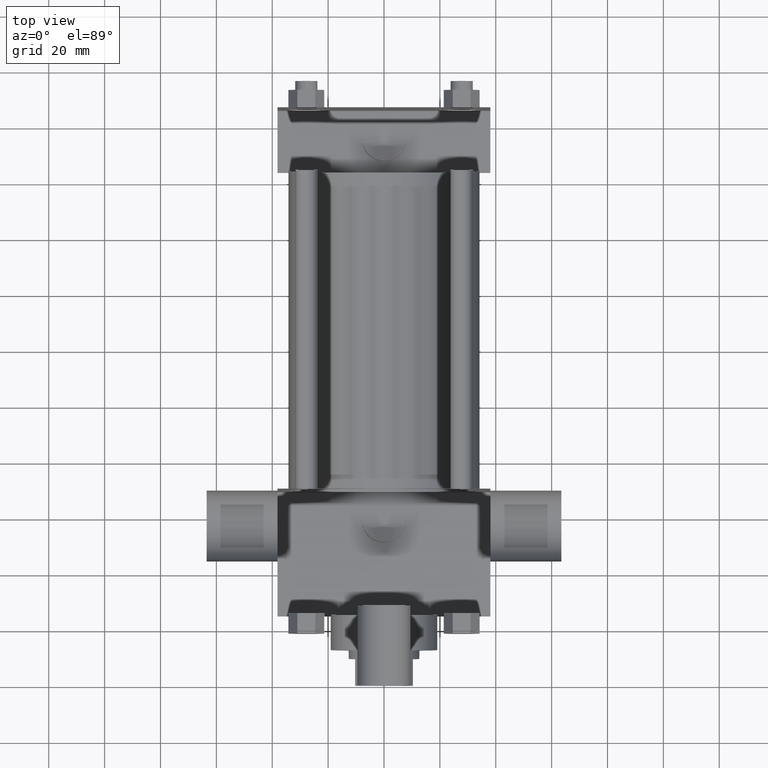
[diagram: clean part render]
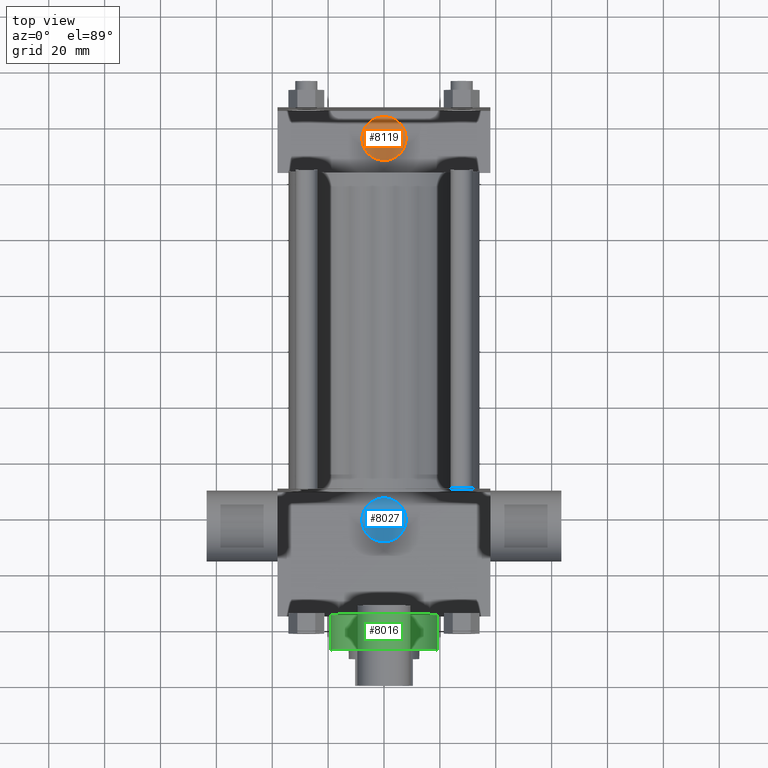
[diagram: same view with three faces highlighted in distinct colors, each labeled with its STEP entity id]
A machine part, top view with three faces highlighted in distinct colors.
Their STEP definitions:

[orange] entity #8119 — the highlighted planar face has unit normal (0, 0, -1).
#4816=EDGE_CURVE('',#4822,#4822,#4817,.T.);
#4817=CIRCLE('',#4818,7.963027000E+000);
#4818=AXIS2_PLACEMENT_3D('',#4819,#4820,#4821);
#4819=CARTESIAN_POINT('',(0.000000000E+000,1.952625000E+002,2.628900000E+001));
#4820=DIRECTION('',(0.0E+000,0.0E+000,-1.0E+000));
#4821=DIRECTION('',(1.0E+000,0.0E+000,0.0E+000));
#4822=VERTEX_POINT('',#4823);
#4823=CARTESIAN_POINT('',(7.963027000E+000,1.952625000E+002,2.628900000E+001));
#4830=FACE_OUTER_BOUND('',#4831,.T.);
#4831=EDGE_LOOP('',(#4832));
#4832=ORIENTED_EDGE('',*,*,#4816,.F.);
#4833=PLANE('',#4834);
#4834=AXIS2_PLACEMENT_3D('',#4835,#4836,#4837);
#4835=CARTESIAN_POINT('',(0.000000000E+000,1.952625000E+002,2.628900000E+001));
#4836=DIRECTION('',(0.0E+000,0.0E+000,-1.0E+000));
#4837=DIRECTION('',(-1.0E+000,0.0E+000,0.0E+000));
#8119=ADVANCED_FACE('',(#4830),#4833,.F.);

[blue] entity #8027 — the highlighted planar face has unit normal (0, 0, -1).
#744=EDGE_CURVE('',#750,#750,#745,.T.);
#745=CIRCLE('',#746,7.963027000E+000);
#746=AXIS2_PLACEMENT_3D('',#747,#748,#749);
#747=CARTESIAN_POINT('',(0.000000000E+000,5.873750000E+001,2.628900000E+001));
#748=DIRECTION('',(0.0E+000,0.0E+000,-1.0E+000));
#749=DIRECTION('',(1.0E+000,0.0E+000,0.0E+000));
#750=VERTEX_POINT('',#751);
#751=CARTESIAN_POINT('',(7.963027000E+000,5.873750000E+001,2.628900000E+001));
#758=FACE_OUTER_BOUND('',#759,.T.);
#759=EDGE_LOOP('',(#760));
#760=ORIENTED_EDGE('',*,*,#744,.F.);
#761=PLANE('',#762);
#762=AXIS2_PLACEMENT_3D('',#763,#764,#765);
#763=CARTESIAN_POINT('',(0.000000000E+000,5.873750000E+001,2.628900000E+001));
#764=DIRECTION('',(0.0E+000,0.0E+000,-1.0E+000));
#765=DIRECTION('',(-1.0E+000,0.0E+000,0.0E+000));
#8027=ADVANCED_FACE('',(#758),#761,.F.);

[green] entity #8016 — the highlighted cylindrical surface (bore or boss wall) has radius 19.05 mm, axis along (0, -1, 0).
#405=EDGE_CURVE('',#411,#411,#406,.T.);
#406=CIRCLE('',#407,1.905000000E+001);
#407=AXIS2_PLACEMENT_3D('',#408,#409,#410);
#408=CARTESIAN_POINT('',(0.000000000E+000,1.270000000E+001,0.000000000E+000));
#409=DIRECTION('',(0.0E+000,1.0E+000,0.0E+000));
#410=DIRECTION('',(1.0E+000,0.0E+000,0.0E+000));
#411=VERTEX_POINT('',#412);
#412=CARTESIAN_POINT('',(1.905000000E+001,1.270000000E+001,0.000000000E+000));
#419=FACE_OUTER_BOUND('',#421,.T.);
#420=FACE_BOUND('',#422,.T.);
#421=EDGE_LOOP('',(#423));
#422=EDGE_LOOP('',(#432));
#423=ORIENTED_EDGE('',*,*,#424,.F.);
#424=EDGE_CURVE('',#430,#430,#425,.T.);
#425=CIRCLE('',#426,1.905000000E+001);
#426=AXIS2_PLACEMENT_3D('',#427,#428,#429);
#427=CARTESIAN_POINT('',(0.000000000E+000,2.540000000E+001,0.000000000E+000));
#428=DIRECTION('',(0.0E+000,1.0E+000,0.0E+000));
#429=DIRECTION('',(1.0E+000,0.0E+000,0.0E+000));
#430=VERTEX_POINT('',#431);
#431=CARTESIAN_POINT('',(1.905000000E+001,2.540000000E+001,0.000000000E+000));
#432=ORIENTED_EDGE('',*,*,#405,.T.);
#433=CYLINDRICAL_SURFACE('',#434,1.905000000E+001);
#434=AXIS2_PLACEMENT_3D('',#435,#436,#437);
#435=CARTESIAN_POINT('',(0.000000000E+000,2.540000000E+001,0.000000000E+000));
#436=DIRECTION('',(0.0E+000,-1.0E+000,0.0E+000));
#437=DIRECTION('',(0.0E+000,0.0E+000,-1.0E+000));
#8016=ADVANCED_FACE('',(#419,#420),#433,.T.);